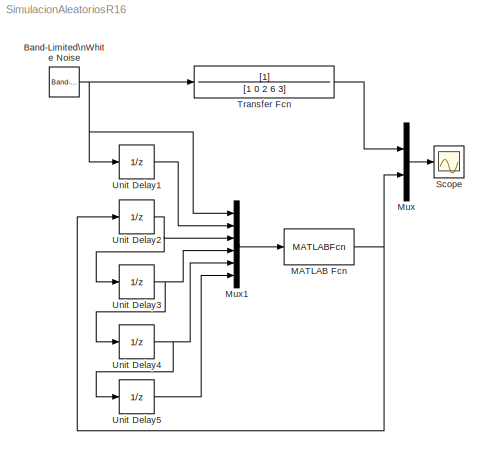
MODEL SimulacionAleatoriosR16
KIND model
BLOCK [Reference] Band-Limited\nWhite Noise  REF=simulink/Sources/Band-Limited\nWhite Noise
  Cov = [0.1]
  Ports = [0, 1]
  RTWMemSecDataConstants = Inherit from model
  RTWMemSecDataInternal = Inherit from model
  RTWMemSecDataParameters = Inherit from model
  RTWMemSecFuncExecute = Inherit from model
  RTWMemSecFuncInitTerm = Inherit from model
  SID = 1
  SourceBlock = simulink/Sources/Band-Limited\nWhite Noise
  SourceProductBaseCode = SL
  SourceType = Band-Limited White Noise.
  Ts = 10
  VectorParams1D = on
  seed = [23341]
BLOCK [MATLABFcn] MATLAB Fcn
  MATLABFcn = sim(net,u)
  Ports = [1, 1]
  SID = 3
BLOCK [Mux] Mux
  DisplayOption = bar
  Inputs = 2
  Ports = [2, 1]
  SID = 4
BLOCK [Mux] Mux1
  DisplayOption = bar
  Inputs = 6
  Ports = [6, 1]
  SID = 5
BLOCK [Scope] Scope
  Floating = off
  NumInputPorts = 1
  Ports = [1]
  SID = 6
  ScopeSpecificationString = Simulink.scopes.TimeScopeBlockCfg('CurrentConfiguration', extmgr.ConfigurationSet(extmgr.Configuration('Core','General UI',true),extmgr.Configuration('Core','Source UI',true),extmgr.Configuration('Sources','WiredSimulink',true,'DataLoggingSaveFormat','StructureWithTime','SampleTime','0.1','DataLoggingLimitDataPoints',true,'DataLoggingDecimation','1','DataLoggingDecimateData',true),extmgr.Configura...<+1972ch>
BLOCK [TransferFcn] Transfer Fcn
  Denominator = [1 0 2 6 3]
  SID = 7
BLOCK [UnitDelay] Unit Delay1
  HasFrameUpgradeWarning = on
  SID = 8
  SampleTime = 0.1
BLOCK [UnitDelay] Unit Delay2
  HasFrameUpgradeWarning = on
  SID = 9
  SampleTime = 0.1
BLOCK [UnitDelay] Unit Delay3
  HasFrameUpgradeWarning = on
  SID = 10
  SampleTime = 0.1
BLOCK [UnitDelay] Unit Delay4
  HasFrameUpgradeWarning = on
  SID = 11
  SampleTime = 0.1
BLOCK [UnitDelay] Unit Delay5
  HasFrameUpgradeWarning = on
  SID = 12
  SampleTime = 0.1
NET Band-Limited\nWhite Noise:1 -> Mux1:1, Transfer Fcn:1, Unit Delay1:1
NET MATLAB Fcn:1 -> Mux:2, Unit Delay2:1
LINE Mux1:1 -> MATLAB Fcn:1
LINE Mux:1 -> Scope:1
LINE Transfer Fcn:1 -> Mux:1
LINE Unit Delay1:1 -> Mux1:2
NET Unit Delay2:1 -> Mux1:3, Unit Delay3:1
NET Unit Delay3:1 -> Mux1:4, Unit Delay4:1
NET Unit Delay4:1 -> Mux1:5, Unit Delay5:1
LINE Unit Delay5:1 -> Mux1:6
note: NET lines group one-source signal fan-out (src -> all destinations, sorted); 1:1 wires keep LINE
